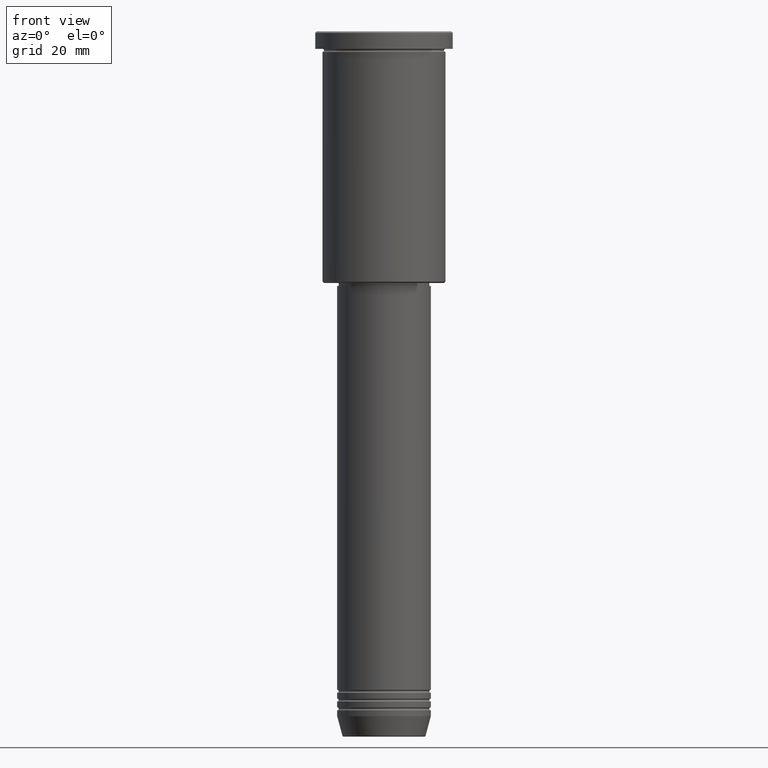
[diagram: clean part render]
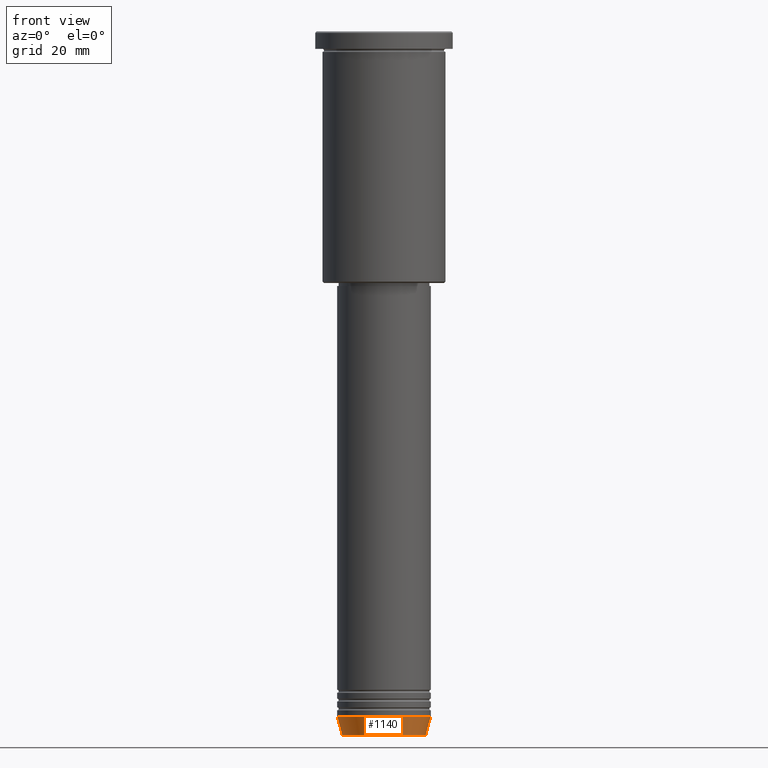
[diagram: same view with one face highlighted and labeled with its STEP entity id]
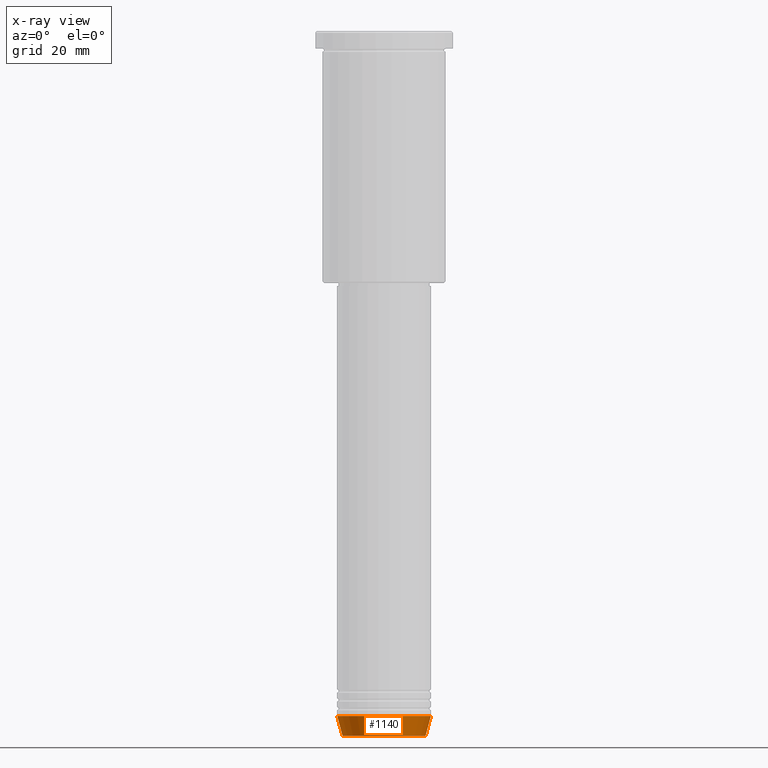
[diagram: x-ray of the same camera — body ghosted, the highlighted face saturated]
A machine part, front view. The second image highlights one B-rep face of the part: STEP entity #1140.
The next image is the same camera in x-ray: the body ghosted, the highlighted face saturated — about 0% of this face is hidden behind the body in this view.
In plain terms, the highlighted conical surface has half-angle 15 deg.
Its self-contained STEP definition (entity closure, byte-faithful):
#101 = EDGE_CURVE ( 'NONE', #722, #411, #536, .T. ) ;
#105 = VERTEX_POINT ( 'NONE', #1073 ) ;
#178 = CARTESIAN_POINT ( 'NONE',  ( 16.00000000000000000, 0.000000000000000000, -234.0000000000000000 ) ) ;
#195 = VECTOR ( 'NONE', #299, 1000.000000000000000 ) ;
#199 = ORIENTED_EDGE ( 'NONE', *, *, #101, .T. ) ;
#208 = VECTOR ( 'NONE', #273, 1000.000000000000000 ) ;
#238 = EDGE_LOOP ( 'NONE', ( #453, #487, #199, #634 ) ) ;
#273 = DIRECTION ( 'NONE',  ( 0.2588190451025213501, 0.000000000000000000, 0.9659258262890680902 ) ) ;
#299 = DIRECTION ( 'NONE',  ( -0.2588190451025213501, 3.169619151431772337E-17, 0.9659258262890680902 ) ) ;
#349 = AXIS2_PLACEMENT_3D ( 'NONE', #523, #431, #877 ) ;
#400 = FACE_OUTER_BOUND ( 'NONE', #238, .T. ) ;
#407 = CIRCLE ( 'NONE', #349, 16.00000000000000000 ) ;
#411 = VERTEX_POINT ( 'NONE', #1137 ) ;
#431 = DIRECTION ( 'NONE',  ( -0.000000000000000000, -0.000000000000000000, 1.000000000000000000 ) ) ;
#453 = ORIENTED_EDGE ( 'NONE', *, *, #1088, .F. ) ;
#487 = ORIENTED_EDGE ( 'NONE', *, *, #1153, .T. ) ;
#522 = CONICAL_SURFACE ( 'NONE', #782, 16.00000000000000000, 0.2617993877991500740 ) ;
#523 = CARTESIAN_POINT ( 'NONE',  ( 0.000000000000000000, 0.000000000000000000, -234.0000000000000000 ) ) ;
#536 = LINE ( 'NONE', #178, #208 ) ;
#586 = DIRECTION ( 'NONE',  ( 1.000000000000000000, 0.000000000000000000, 0.000000000000000000 ) ) ;
#634 = ORIENTED_EDGE ( 'NONE', *, *, #809, .F. ) ;
#645 = CARTESIAN_POINT ( 'NONE',  ( 0.000000000000000000, 0.000000000000000000, -240.6294095225512706 ) ) ;
#677 = CARTESIAN_POINT ( 'NONE',  ( 14.22365507213719660, 0.000000000000000000, -240.6294095225512706 ) ) ;
#697 = CARTESIAN_POINT ( 'NONE',  ( -14.22365507213719660, 1.850665122131324126E-15, -240.6294095225512706 ) ) ;
#722 = VERTEX_POINT ( 'NONE', #677 ) ;
#746 = VERTEX_POINT ( 'NONE', #697 ) ;
#754 = CARTESIAN_POINT ( 'NONE',  ( 0.000000000000000000, 0.000000000000000000, -234.0000000000000000 ) ) ;
#782 = AXIS2_PLACEMENT_3D ( 'NONE', #754, #1122, #586 ) ;
#809 = EDGE_CURVE ( 'NONE', #105, #411, #407, .T. ) ;
#827 = DIRECTION ( 'NONE',  ( 1.000000000000000000, 0.000000000000000000, 0.000000000000000000 ) ) ;
#837 = AXIS2_PLACEMENT_3D ( 'NONE', #645, #1002, #827 ) ;
#877 = DIRECTION ( 'NONE',  ( 1.000000000000000000, 0.000000000000000000, 0.000000000000000000 ) ) ;
#941 = LINE ( 'NONE', #1108, #195 ) ;
#1002 = DIRECTION ( 'NONE',  ( -0.000000000000000000, -0.000000000000000000, 1.000000000000000000 ) ) ;
#1073 = CARTESIAN_POINT ( 'NONE',  ( -16.00000000000000000, 1.959434878635765131E-15, -234.0000000000000000 ) ) ;
#1088 = EDGE_CURVE ( 'NONE', #746, #105, #941, .T. ) ;
#1108 = CARTESIAN_POINT ( 'NONE',  ( -16.00000000000000000, 1.959434878635765131E-15, -234.0000000000000000 ) ) ;
#1122 = DIRECTION ( 'NONE',  ( -0.000000000000000000, -0.000000000000000000, 1.000000000000000000 ) ) ;
#1137 = CARTESIAN_POINT ( 'NONE',  ( 16.00000000000000000, 0.000000000000000000, -234.0000000000000000 ) ) ;
#1140 = ADVANCED_FACE ( 'NONE', ( #400 ), #522, .T. ) ;
#1153 = EDGE_CURVE ( 'NONE', #746, #722, #1178, .T. ) ;
#1178 = CIRCLE ( 'NONE', #837, 14.22365507213719660 ) ;